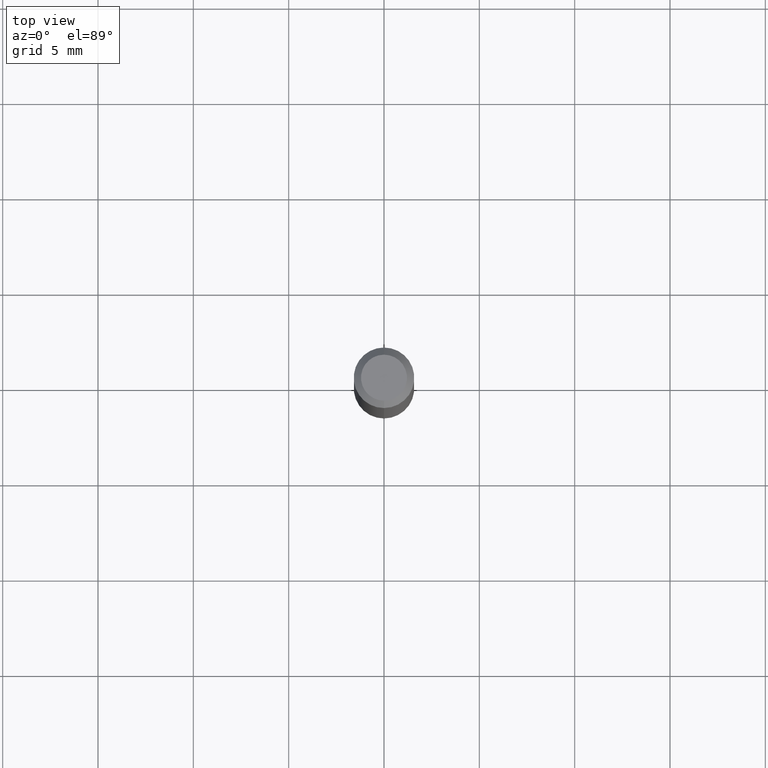
[diagram: clean part render]
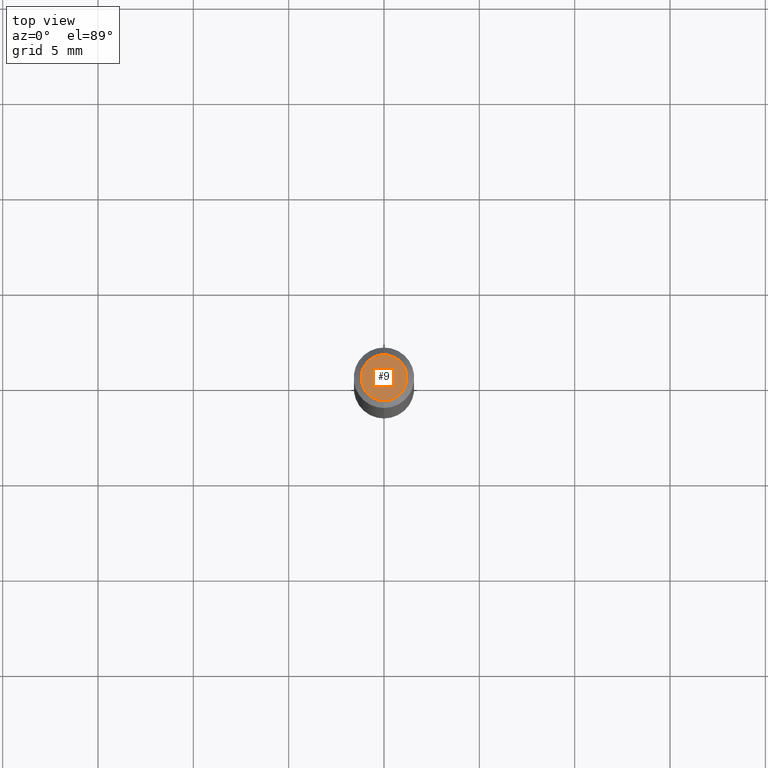
[diagram: same view with one face highlighted and labeled with its STEP entity id]
A machine part, top view. The second image highlights one B-rep face of the part: STEP entity #9.
In plain terms, the highlighted planar face has unit normal (0, -0, -1).
Its self-contained STEP definition (entity closure, byte-faithful):
#9 = ADVANCED_FACE ( 'NONE', ( #486 ), #177, .F. ) ;
#23 = AXIS2_PLACEMENT_3D ( 'NONE', #221, #259, #25 ) ;
#25 = DIRECTION ( 'NONE',  ( -6.982962677686266711E-15, -1.000000000000000000, 3.491500811832253587E-15 ) ) ;
#69 = VERTEX_POINT ( 'NONE', #255 ) ;
#70 = CIRCLE ( 'NONE', #441, 0.04749999999999999362 ) ;
#84 = DIRECTION ( 'NONE',  ( -2.445455208269520980E-29, 3.491500811832252799E-15, 1.000000000000000000 ) ) ;
#101 = EDGE_CURVE ( 'NONE', #69, #204, #70, .T. ) ;
#143 = DIRECTION ( 'NONE',  ( 2.445455208269520139E-29, -3.491500811832253193E-15, -1.000000000000000000 ) ) ;
#151 = ORIENTED_EDGE ( 'NONE', *, *, #309, .T. ) ;
#156 = CIRCLE ( 'NONE', #23, 0.04749999999999999362 ) ;
#177 = PLANE ( 'NONE',  #412 ) ;
#204 = VERTEX_POINT ( 'NONE', #489 ) ;
#221 = CARTESIAN_POINT ( 'NONE',  ( -5.856610105478164244E-45, 8.361780198923321254E-31, 2.394895676548695195E-16 ) ) ;
#252 = CARTESIAN_POINT ( 'NONE',  ( -5.856610105478164244E-45, 8.361780198923321254E-31, 2.394895676548695195E-16 ) ) ;
#255 = CARTESIAN_POINT ( 'NONE',  ( -3.773273898774340269E-16, -0.04749999999999999362, 4.053358562169015185E-16 ) ) ;
#259 = DIRECTION ( 'NONE',  ( -2.445455208269520980E-29, 3.491500811832252799E-15, 1.000000000000000000 ) ) ;
#261 = DIRECTION ( 'NONE',  ( 6.982962677686265922E-15, 1.000000000000000000, -3.491500811832253193E-15 ) ) ;
#279 = EDGE_LOOP ( 'NONE', ( #151, #468 ) ) ;
#309 = EDGE_CURVE ( 'NONE', #204, #69, #156, .T. ) ;
#386 = DIRECTION ( 'NONE',  ( -6.982962677686266711E-15, -1.000000000000000000, 3.491500811832253587E-15 ) ) ;
#412 = AXIS2_PLACEMENT_3D ( 'NONE', #465, #143, #261 ) ;
#441 = AXIS2_PLACEMENT_3D ( 'NONE', #252, #84, #386 ) ;
#465 = CARTESIAN_POINT ( 'NONE',  ( 3.316907271900976096E-16, 0.04749999999999999362, -4.610150473459723931E-17 ) ) ;
#468 = ORIENTED_EDGE ( 'NONE', *, *, #101, .T. ) ;
#486 = FACE_OUTER_BOUND ( 'NONE', #279, .T. ) ;
#489 = CARTESIAN_POINT ( 'NONE',  ( 3.840629472727447874E-16, 0.04749999999999999362, 7.364327909283752044E-17 ) ) ;